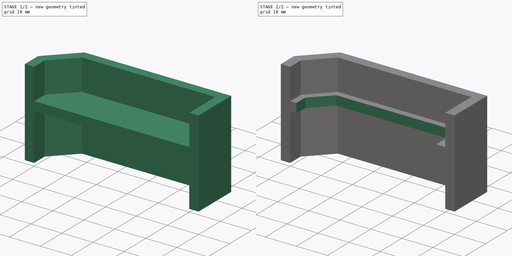
[diagram: build sequence overview — one tinted view per stage of 2, left to right]
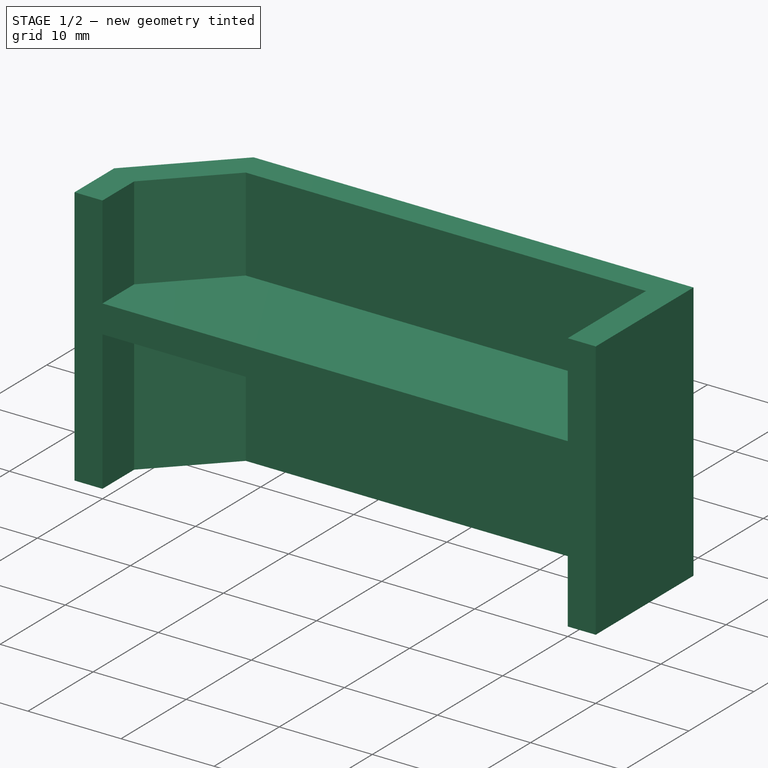
[diagram: stage 1 of 2 — iso view after this stage's code; geometry added in this stage tinted green]
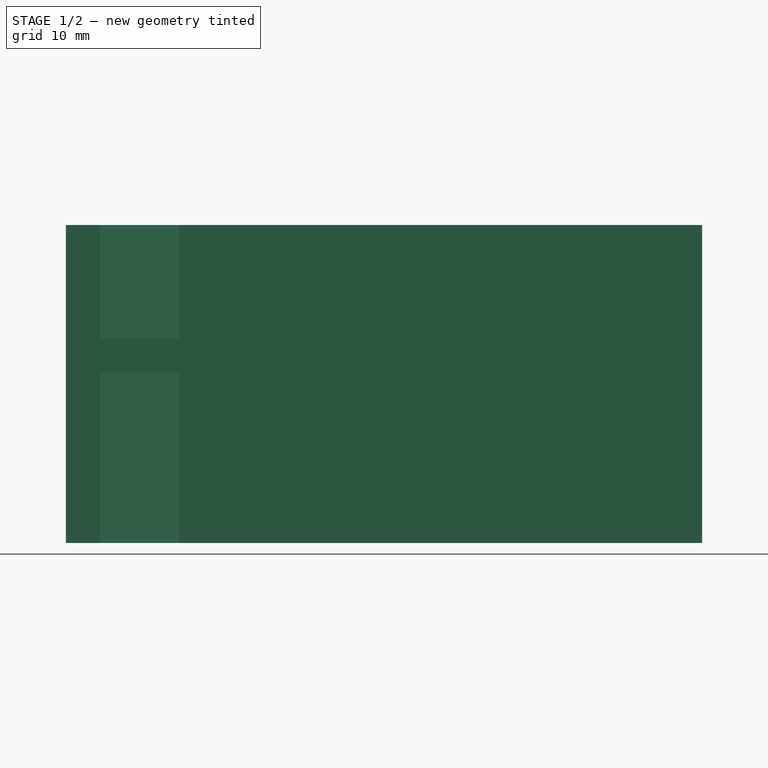
[diagram: stage 1 of 2 — front view after this stage's code; geometry added in this stage tinted green]
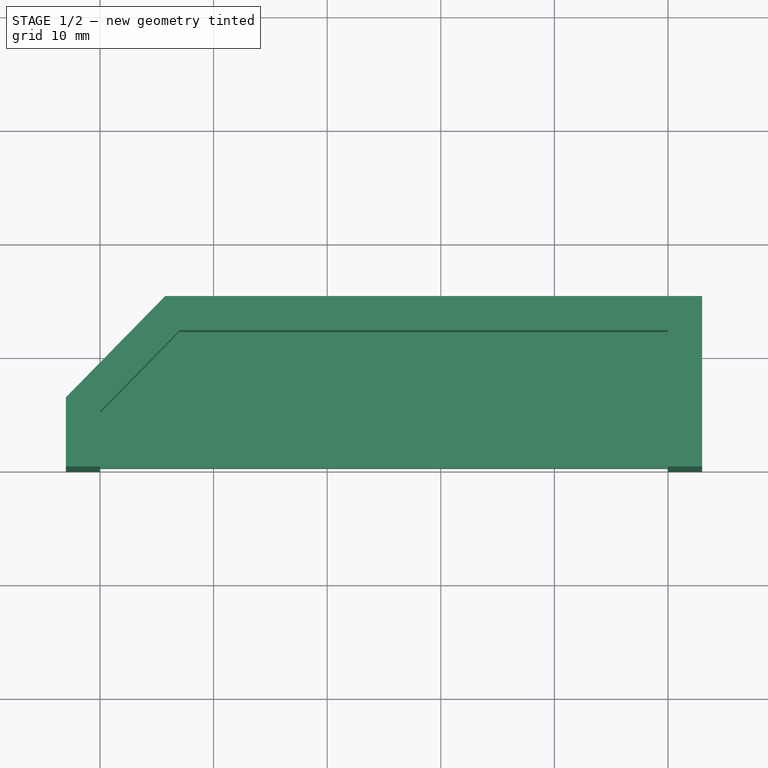
[diagram: stage 1 of 2 — top view after this stage's code; geometry added in this stage tinted green]
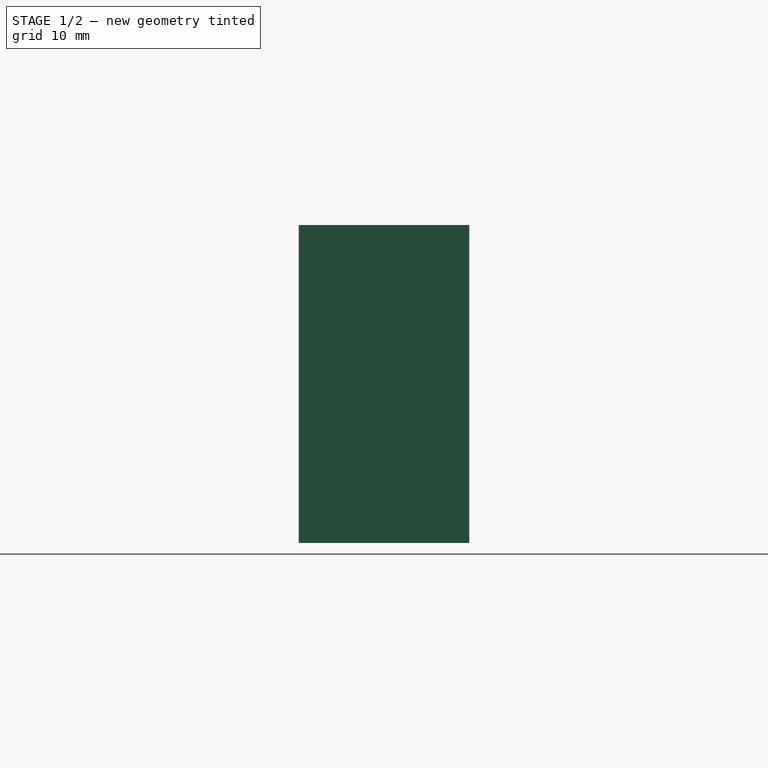
[diagram: stage 1 of 2 — right view after this stage's code; geometry added in this stage tinted green]
FCSTD DOCUMENT  (FreeCAD 0.19R24291 (Git))
Label: Connetctor230V
License: All rights reserved
LicenseURL: http://en.wikipedia.org/wiki/All_rights_reserved
objects: Sketcher::SketchObject×3, PartDesign::Pad×2, PartDesign::Pocket×1, PartDesign::Body×1
note: 10 computed .brp shape members not serialized (recipe doc carries the construction recipe); baked Part::Feature solids carry a one-line shape summary decoded from their .brp

FEATURE [Sketcher::SketchObject] Sketch
  FullyConstrained = true
  MapMode = 5
  Support = -> [XY_Plane]
  sketch-geometry (5):
    g0: LineSegment StartX=-43 StartY=12 StartZ=0 EndX=0 EndY=12 EndZ=0
    g1: LineSegment StartX=-43 StartY=12 StartZ=0 EndX=-50 EndY=4.85857 EndZ=0
    g2: LineSegment StartX=-50 StartY=4.85857 StartZ=0 EndX=-50 EndY=0 EndZ=0
    g3: LineSegment StartX=-50 StartY=0 StartZ=0 EndX=0 EndY=0 EndZ=0
    g4: LineSegment StartX=0 StartY=12 StartZ=0 EndX=0 EndY=0 EndZ=0
  constraints (15):
    c: Horizontal(g0)
    c: Coincident(g1,g0)
    c: Coincident(g2,g1)
    c: DistanceX(g0,g0) = 43
    c: Coincident(g3,g2)
    c: Horizontal(g3)
    c: Coincident(g4,g0)
    c: Coincident(g4,g3)
    c: PointOnObject(g3,g-2)
    c: Parallel(g2,g4)
    c: PointOnObject(g0,g-2)
    c: PointOnObject(g2,g-1)
    c: DistanceX(g3,g3) = 50
    c: DistanceY(g4,g4) = 12
    c: Distance(g1) = 10
FEATURE [PartDesign::Pad] Pad
  Direction = (1,1,1)
  Length = 3
  Length2 = 100
  Profile = -> Sketch
  Type = 0
FEATURE [Sketcher::SketchObject] Sketch001
  ExternalGeometry = -> [Pad]
  FullyConstrained = true
  MapMode = 5
  Placement = pos=(0,0,3) rot=(0,0,1;0rad)
  Support = -> [Pad]
  sketch-geometry (11):
    g0: LineSegment StartX=-50 StartY=0 StartZ=0 EndX=-53 EndY=0 EndZ=0
    g1: LineSegment StartX=-53 StartY=0 StartZ=0 EndX=-53 EndY=6.08367 EndZ=0
    g2: LineSegment StartX=-53 StartY=6.08367 StartZ=0 EndX=-44.2603 EndY=15 EndZ=0
    g3: LineSegment StartX=-44.2603 StartY=15 StartZ=0 EndX=0 EndY=15 EndZ=0
    g4: LineSegment StartX=0 StartY=0 StartZ=0 EndX=3 EndY=0 EndZ=0
    g5: LineSegment StartX=3 StartY=0 StartZ=0 EndX=3 EndY=15 EndZ=0
    g6: LineSegment StartX=3 StartY=15 StartZ=0 EndX=0 EndY=15 EndZ=0
    g7: LineSegment StartX=0 StartY=0 StartZ=0 EndX=0 EndY=12 EndZ=0
    g8: LineSegment StartX=0 StartY=12 StartZ=0 EndX=-43 EndY=12 EndZ=0
    g9: LineSegment StartX=-43 StartY=12 StartZ=0 EndX=-50 EndY=4.85857 EndZ=0
    g10: LineSegment StartX=-50 StartY=4.85857 StartZ=0 EndX=-50 EndY=0 EndZ=0
  constraints (29):
    c: Coincident(g0,g-5)
    c: PointOnObject(g0,g-1)
    c: Coincident(g1,g0)
    c: Coincident(g2,g1)
    c: Horizontal(g3)
    c: Distance(g1,g-5) = 3
    c: Distance(g0,g-5) = 3
    c: Coincident(g3,g2)
    c: DistanceY(g-3,g3) = 3
    c: Parallel(g2,g-4)
    c: Coincident(g4,g-1)
    c: PointOnObject(g4,g-1)
    c: Coincident(g5,g4)
    c: Coincident(g6,g3)
    c: Horizontal(g6)
    c: Parallel(g-2,g5)
    c: Distance(g-3,g5) = 3
    c: PointOnObject(g3,g-2)
    c: Distance(g-4) = 10
    c: Distance(g-4,g2) = 3
    c: Coincident(g6,g5)
    c: Coincident(g7,g4)
    c: Coincident(g7,g-3)
    c: Coincident(g8,g7)
    c: Coincident(g8,g-4)
    c: Coincident(g9,g8)
    c: Coincident(g9,g-5)
    c: Coincident(g10,g9)
    c: Coincident(g10,g0)
FEATURE [PartDesign::Pad] Pad001
  BaseFeature = -> Pad
  Direction = (1,1,1)
  Length = 10
  Length2 = 18
  Profile = -> Sketch001
  Reversed = true
  Type = 4
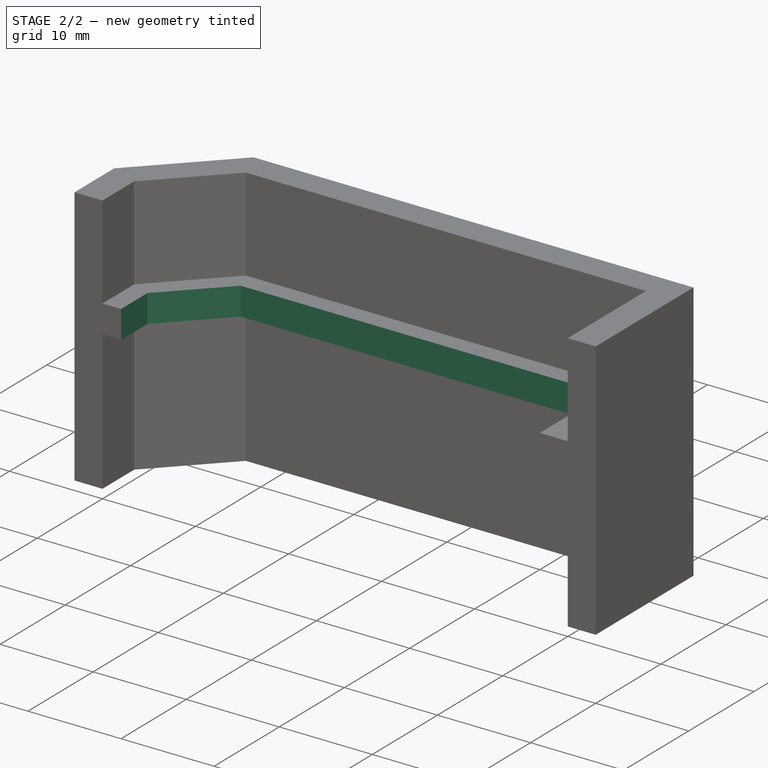
[diagram: stage 2 of 2 — iso view after this stage's code; geometry added in this stage tinted green]
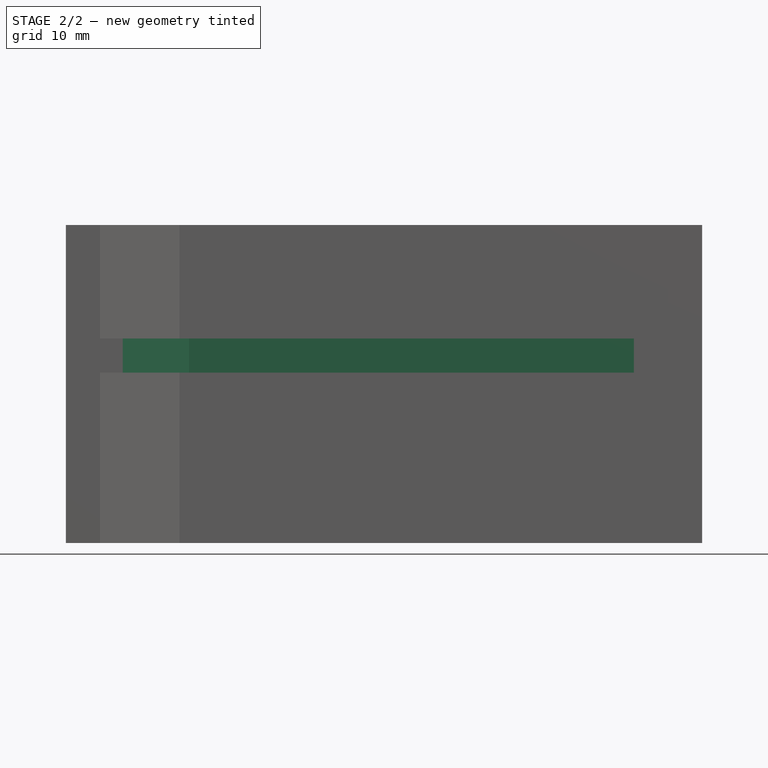
[diagram: stage 2 of 2 — front view after this stage's code; geometry added in this stage tinted green]
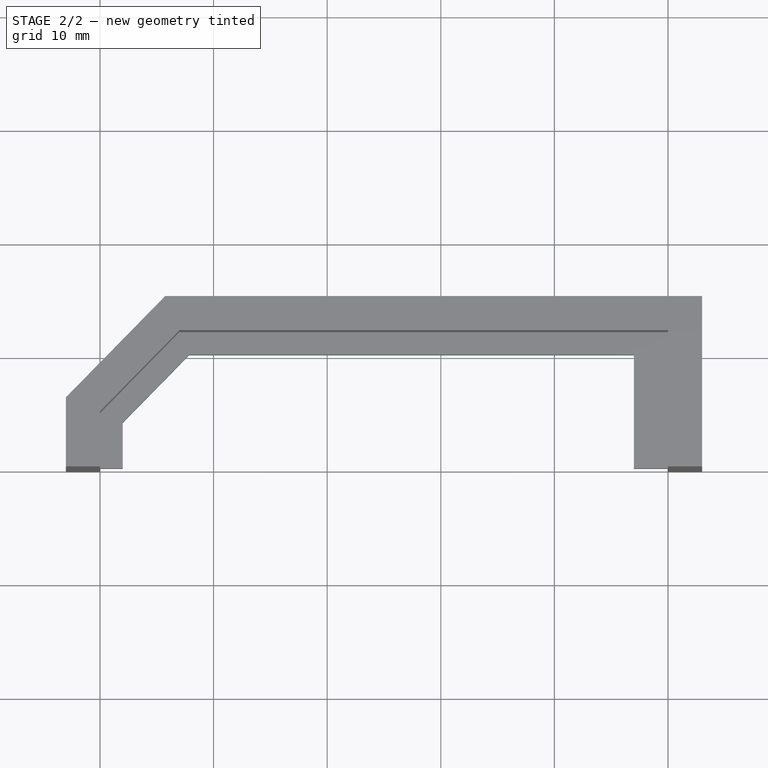
[diagram: stage 2 of 2 — top view after this stage's code; geometry added in this stage tinted green]
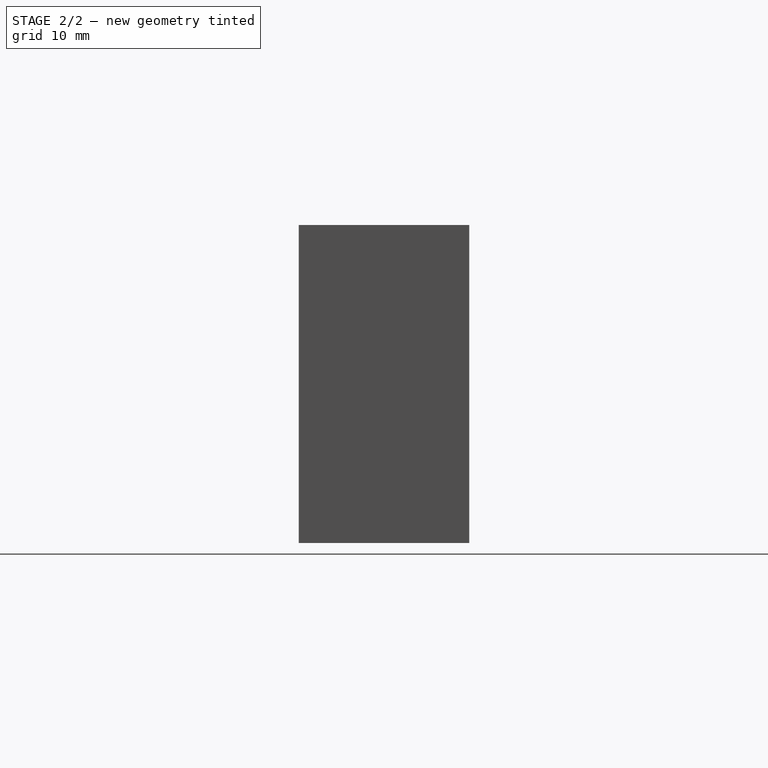
[diagram: stage 2 of 2 — right view after this stage's code; geometry added in this stage tinted green]
FEATURE [Sketcher::SketchObject] Sketch002
  ExternalGeometry = -> [Pad001]
  FullyConstrained = true
  MapMode = 5
  Placement = pos=(0,0,3) rot=(0,0,1;0rad)
  Support = -> [Pad001]
  sketch-geometry (5):
    g0: LineSegment StartX=-48 StartY=0 StartZ=0 EndX=-48 EndY=4.04184 EndZ=0
    g1: LineSegment StartX=-48 StartY=4.04184 StartZ=0 EndX=-42.1598 EndY=10 EndZ=0
    g2: LineSegment StartX=-42.1598 StartY=10 StartZ=0 EndX=-3 EndY=10 EndZ=0
    g3: LineSegment StartX=-3 StartY=10 StartZ=0 EndX=-3 EndY=0 EndZ=0
    g4: LineSegment StartX=-3 StartY=0 StartZ=0 EndX=-48 EndY=0 EndZ=0
  constraints (15):
    c: PointOnObject(g0,g-1)
    c: Vertical(g0)
    c: Coincident(g1,g0)
    c: Coincident(g2,g1)
    c: Horizontal(g2)
    c: Coincident(g3,g2)
    c: PointOnObject(g3,g-1)
    c: Distance(g0,g-5) = 2
    c: Distance(g1,g-4) = 2
    c: Distance(g0,g-3) = 2
    c: Parallel(g-3,g1)
    c: DistanceX(g-2,g2) = -3
    c: Parallel(g-2,g3)
    c: Coincident(g4,g3)
    c: Coincident(g4,g0)
FEATURE [PartDesign::Pocket] Pocket
  BaseFeature = -> Pad001
  Length = 5
  Length2 = 100
  Profile = -> Sketch002
  Type = 0
FEATURE [PartDesign::Body] Body
  Group = -> [Sketch,Pad,Sketch001,Pad001,Sketch002,Pocket]
  Origin = -> Origin
  Tip = -> Pocket
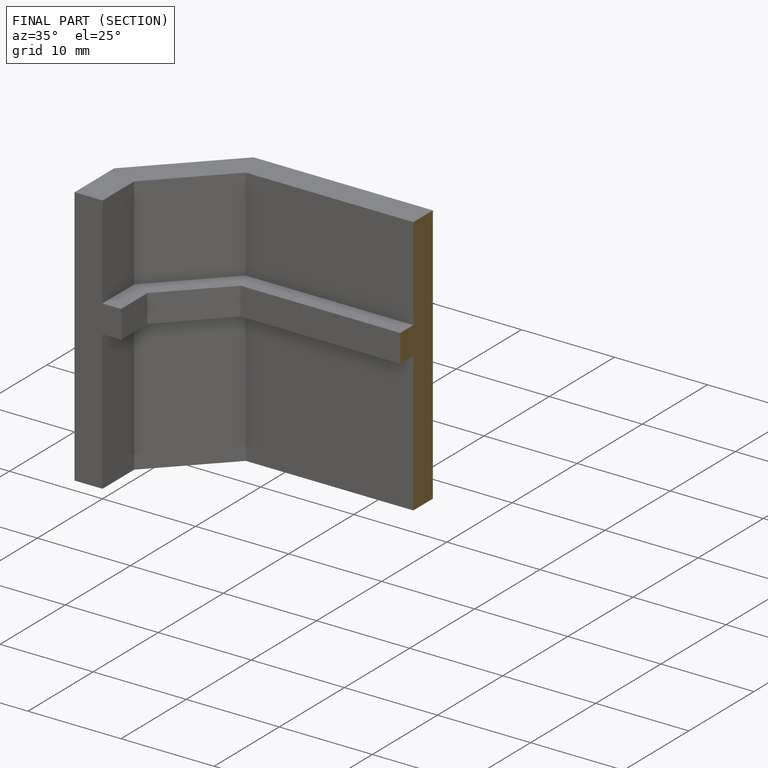
[diagram: finished part — half-section view (interior)]
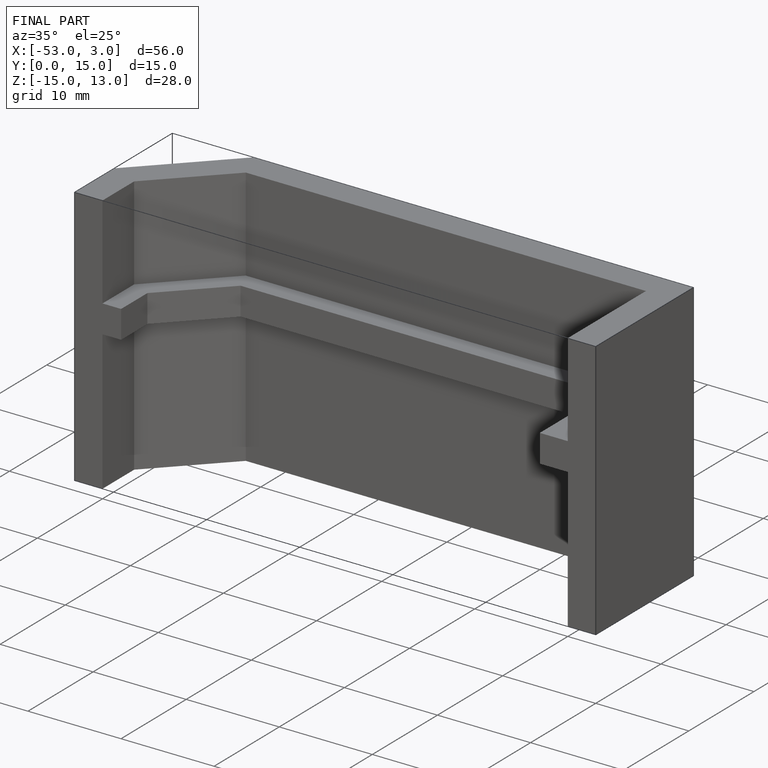
[diagram: finished part — iso view with bounding-box wireframe]
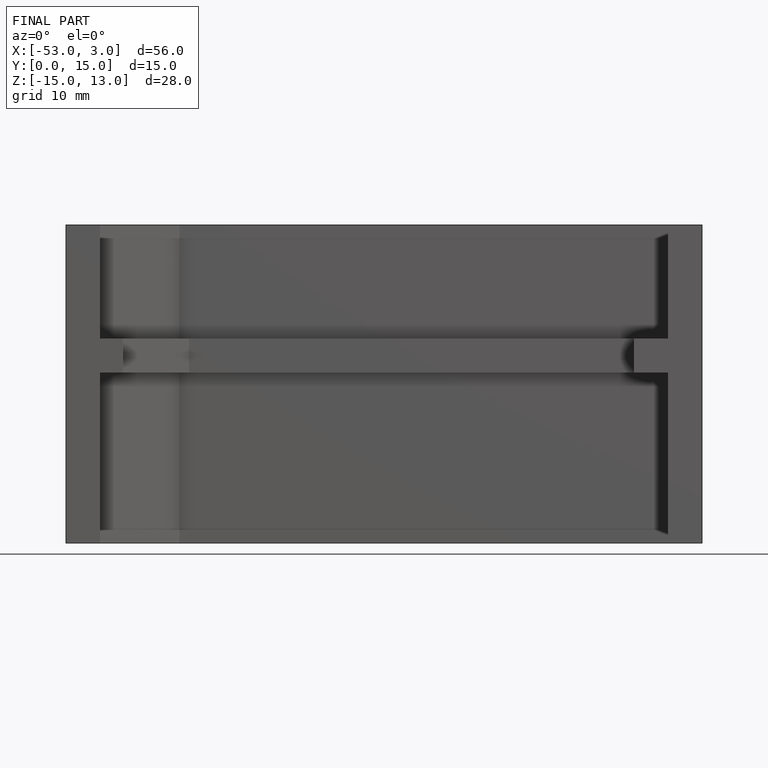
[diagram: finished part — front view with bounding-box wireframe]
